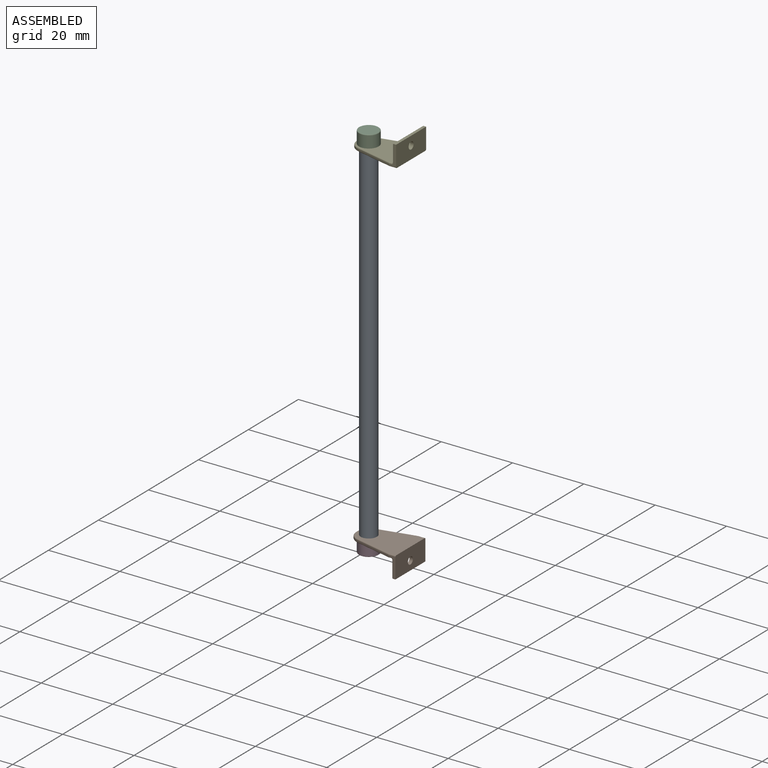
[diagram: assembled view]
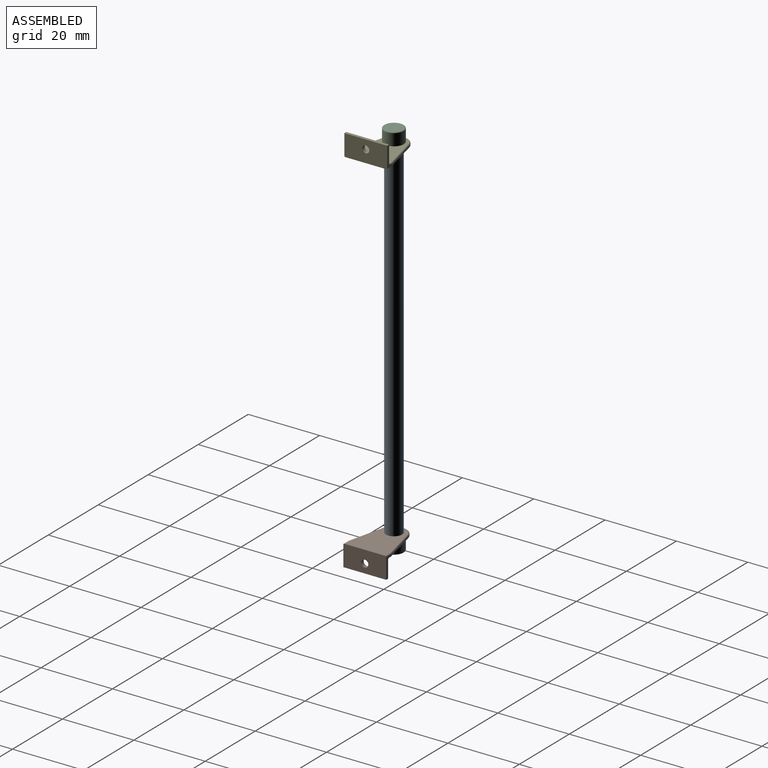
[diagram: assembled view, second angle]
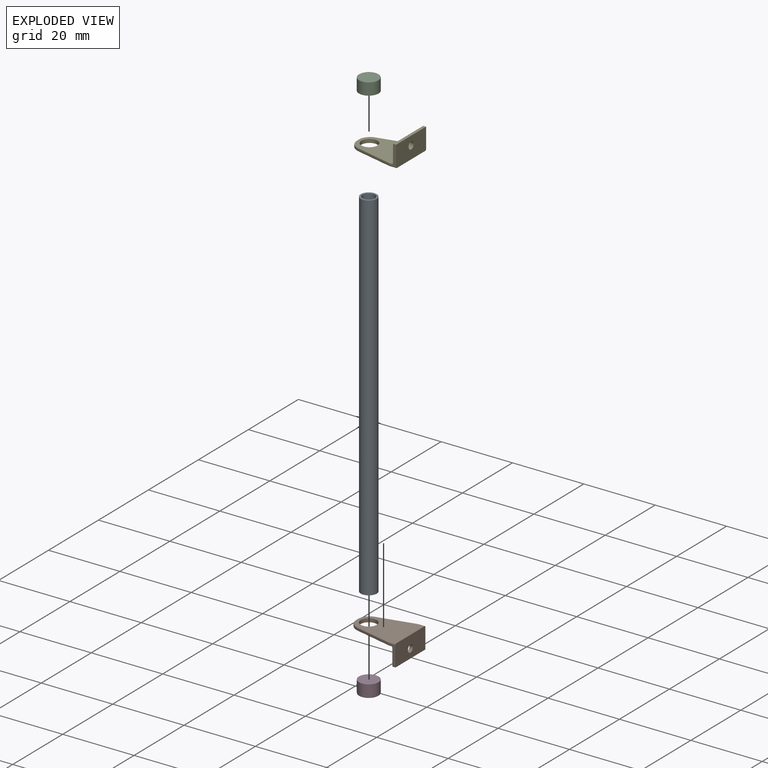
[diagram: exploded view]
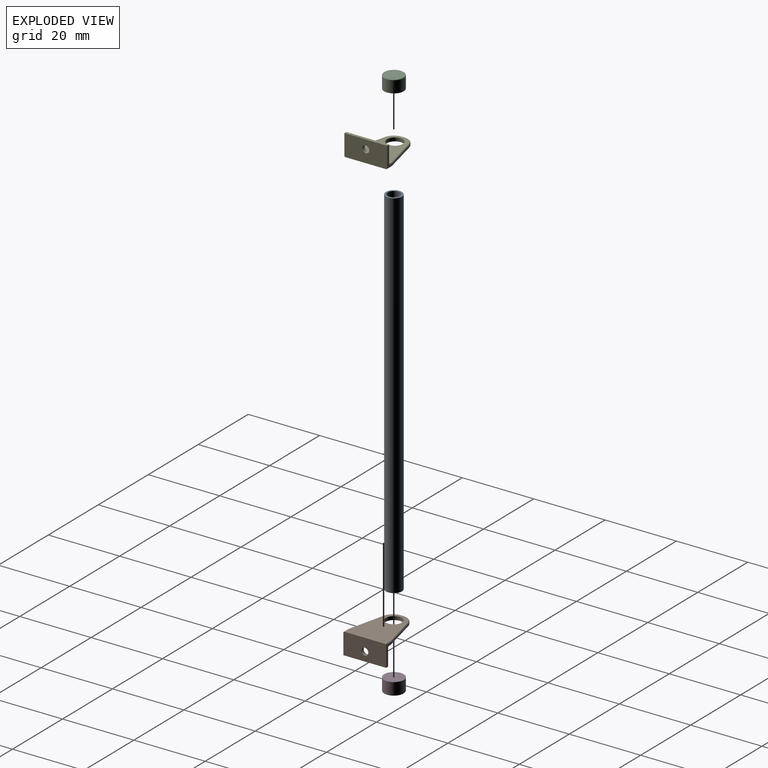
[diagram: exploded view, second angle]
ASSEMBLY  parts=5 mates=4
PART A: 4 faces, bbox 4.5x4.5x100 mm
  f0: cylinder r=2.25mm len=100mm, axis (0,0,1), area 1413.7mm2, adj f1,f2
  f1: plane 4.5x4.5mm, normal (0,0,-1), area 6.3mm2, adj f0,f3
  f2: plane 4.5x4.5mm, normal (0,0,1), area 6.3mm2, adj f0,f3
  f3: cylinder r=1.75mm len=100mm, axis (0,0,-1), area 1099.6mm2, adj f1,f2
PART B: 31 faces, bbox 15.3x12x6 mm
  f0: plane 5.7x2mm, normal (0,-1,0), area 4.6mm2, adj f1,f6,f10,f17,f23,f25,f27
  f1: plane 12x6mm, normal (1,0,0), area 68.8mm2, adj f0,f2,f9,f10,f12,f13,f17
  f2: plane 5.7x2mm, normal (0,1,0), area 4.6mm2, adj f1,f3,f10,f13,f19,f21,f24
  f3: plane 10.44x2.47mm, normal (-0.23,0.97,0), area 4.3mm2, adj f2,f4,f14,f26
  f4: cylinder r=3.34mm len=3.53mm, axis (0,0,-1), area 1.9mm2, adj f3,f5,f15,f28
  f5: cylinder r=3.34mm len=3.53mm, axis (0,0,-1), area 1.9mm2, adj f4,f6,f16,f30
  f6: plane 10.44x2.47mm, normal (-0.23,-0.97,0), area 4.3mm2, adj f0,f5,f18,f29
  f7: cylinder r=2.25mm len=4.5mm, axis (0,0,-1), area 14.1mm2, adj f8,f9
  f8: plane 13.41x11.4mm, normal (0,0,1), area 96.3mm2, adj f7,f22,f24,f26,f27,f28,f29,f30
  f9: plane 14.71x11.4mm, normal (0,0,-1), area 111.1mm2, adj f1,f7,f13,f14,f15,f16,f17,f18
  f10: plane 12x0.7mm, normal (0,0,1), area 8.4mm2, adj f0,f1,f2,f20
  f11: plane 11.4x4.4mm, normal (-1,0,0), area 47mm2, adj f12,f19,f20,f22,f23
  f12: cylinder r=1mm len=2mm, axis (-1,0,0), area 6.3mm2, adj f1,f11
  f13: cylinder r=0.3mm len=2mm, axis (-1,0,0), area 0.9mm2, adj f1,f2,f9,f14
  f14: cylinder r=0.3mm len=10.51mm, axis (-0.97,-0.23,0), area 5mm2, adj f3,f9,f13,f15
  f15: torus R=3.04mm, axis (0,0,1), area 2.2mm2, adj f4,f9,f14,f16
  f16: torus R=3.04mm, axis (0,0,1), area 2.2mm2, adj f5,f9,f15,f18
  f17: cylinder r=0.3mm len=2mm, axis (1,0,0), area 0.9mm2, adj f0,f1,f9,f18
  f18: cylinder r=0.3mm len=10.51mm, axis (0.97,-0.23,0), area 5mm2, adj f6,f9,f16,f17
  f19: cylinder r=0.3mm len=4.7mm, axis (0,0,1), area 2.2mm2, adj f2,f11,f20,f21
  f20: cylinder r=0.3mm len=12mm, axis (0,1,0), area 5.6mm2, adj f10,f11,f19,f23
  f21: torus R=0.6mm, axis (0,-1,0), area 0.3mm2, adj f2,f19,f22,f24
  f22: cylinder r=0.3mm len=11.4mm, axis (0,-1,0), area 5.4mm2, adj f8,f11,f21,f25
  f23: cylinder r=0.3mm len=4.7mm, axis (0,0,-1), area 2.2mm2, adj f0,f11,f20,f25
  f24: cylinder r=0.3mm len=0.7mm, axis (1,0,0), area 0.3mm2, adj f2,f8,f21,f26
  f25: torus R=0.6mm, axis (0,-1,0), area 0.3mm2, adj f0,f22,f23,f27
  f26: cylinder r=0.3mm len=10.51mm, axis (0.97,0.23,0), area 5mm2, adj f3,f8,f24,f28
  f27: cylinder r=0.3mm len=0.7mm, axis (-1,0,0), area 0.3mm2, adj f0,f8,f25,f29
  f28: torus R=3.04mm, axis (0,0,1), area 2.2mm2, adj f4,f8,f26,f30
  f29: cylinder r=0.3mm len=10.51mm, axis (-0.97,0.23,0), area 5mm2, adj f6,f8,f27,f30
  f30: torus R=3.04mm, axis (0,0,1), area 2.2mm2, adj f5,f8,f28,f29
PART C: 4 faces, bbox 6x6x3.5 mm
  f0: cylinder r=2.75mm len=5.5mm, axis (0,0,-1), area 57mm2, adj f2,f3
  f1: plane 5.1x5.1mm, normal (0,0,1), area 20.4mm2, adj f3
  f2: plane 5.5x5.5mm, normal (0,0,-1), area 23.8mm2, adj f0
  f3: torus R=2.55mm, axis (0,0,1), area 5.3mm2, adj f0,f1
PART D: same geometry as C
PART E: same geometry as B
PLACE A rot(axis=(1,0,0),0deg) t=(-262.51,95.64,-132.81)mm
PLACE B rot(axis=(1,0,0),180deg) t=(-262.51,95.64,168.19)mm
PLACE C rot(axis=(1,0,0),0deg) t=(-262.51,95.64,-132.81)mm
PLACE D rot(axis=(1,0,0),180deg) t=(-262.51,95.64,167.19)mm
PLACE E rot(axis=(1,0,0),0deg) t=(-262.51,95.93,-133.81)mm fixed
MATE fastened A.f0 <-> C.f0  axis (0,0,1) through (126.81,95.64,67.19)mm
MATE fastened A.f0 <-> B.f7  axis (0,0,-1) through (126.81,95.64,-32.81)mm
MATE fastened C.f0 <-> E.f5  axis (0,0,-1) through (126.81,95.64,67.19)mm
MATE fastened D.f0 <-> A.f0  axis (0,0,1) through (126.81,95.64,-32.81)mm
